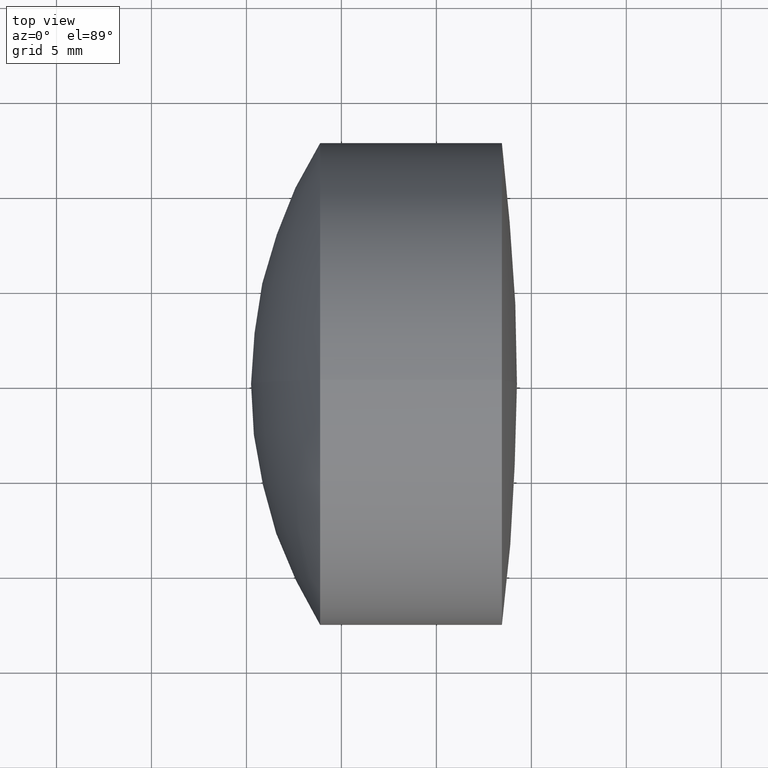
[diagram: clean part render]
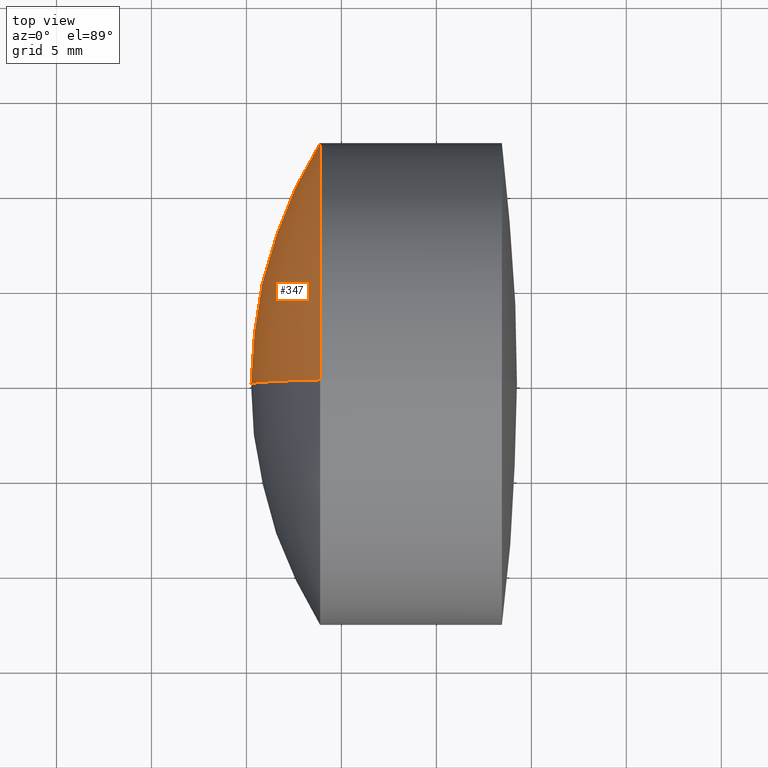
[diagram: same view with one face highlighted and labeled with its STEP entity id]
A machine part, top view. The second image highlights one B-rep face of the part: STEP entity #347.
In plain terms, the highlighted spherical surface has radius 24 mm.
Its self-contained STEP definition (entity closure, byte-faithful):
#9 = DIRECTION ( 'NONE',  ( 0.0000000000000000000, 0.0000000000000000000, 1.000000000000000000 ) ) ;
#12 = CIRCLE ( 'NONE', #179, 23.99999999999999600 ) ;
#23 = AXIS2_PLACEMENT_3D ( 'NONE', #213, #286, #9 ) ;
#29 = CARTESIAN_POINT ( 'NONE',  ( 215.2421632578001700, 0.0000000000000000000, 1.252735716401787200E-015 ) ) ;
#33 = CIRCLE ( 'NONE', #93, 23.99999999999999600 ) ;
#34 = EDGE_CURVE ( 'NONE', #128, #190, #332, .T. ) ;
#51 = DIRECTION ( 'NONE',  ( -1.000000000000000000, -0.0000000000000000000, -0.0000000000000000000 ) ) ;
#78 = CARTESIAN_POINT ( 'NONE',  ( 218.8777334842955900, 0.0000000000000000000, 12.69999999999999900 ) ) ;
#80 = DIRECTION ( 'NONE',  ( 0.0000000000000000000, 0.0000000000000000000, -1.000000000000000000 ) ) ;
#87 = ORIENTED_EDGE ( 'NONE', *, *, #34, .T. ) ;
#91 = EDGE_CURVE ( 'NONE', #128, #229, #33, .T. ) ;
#93 = AXIS2_PLACEMENT_3D ( 'NONE', #105, #268, #80 ) ;
#105 = CARTESIAN_POINT ( 'NONE',  ( 239.2421632578001700, 0.0000000000000000000, -2.168404425750365600E-016 ) ) ;
#110 = EDGE_LOOP ( 'NONE', ( #87, #230, #245 ) ) ;
#128 = VERTEX_POINT ( 'NONE', #78 ) ;
#137 = EDGE_CURVE ( 'NONE', #190, #229, #12, .T. ) ;
#151 = CARTESIAN_POINT ( 'NONE',  ( 218.8777334842955900, 1.555301434917138400E-015, -12.69999999999999900 ) ) ;
#152 = DIRECTION ( 'NONE',  ( -0.0000000000000000000, 1.000000000000000000, 1.224646799147353200E-016 ) ) ;
#179 = AXIS2_PLACEMENT_3D ( 'NONE', #335, #152, #312 ) ;
#190 = VERTEX_POINT ( 'NONE', #151 ) ;
#213 = CARTESIAN_POINT ( 'NONE',  ( 239.2421632578001700, 0.0000000000000000000, -2.168404425750365600E-016 ) ) ;
#219 = DIRECTION ( 'NONE',  ( 0.0000000000000000000, 0.0000000000000000000, 1.000000000000000000 ) ) ;
#229 = VERTEX_POINT ( 'NONE', #29 ) ;
#230 = ORIENTED_EDGE ( 'NONE', *, *, #137, .T. ) ;
#243 = CARTESIAN_POINT ( 'NONE',  ( 218.8777334842955900, 0.0000000000000000000, 0.0000000000000000000 ) ) ;
#245 = ORIENTED_EDGE ( 'NONE', *, *, #91, .F. ) ;
#268 = DIRECTION ( 'NONE',  ( 0.0000000000000000000, -1.000000000000000000, 0.0000000000000000000 ) ) ;
#286 = DIRECTION ( 'NONE',  ( 0.0000000000000000000, 1.000000000000000000, 0.0000000000000000000 ) ) ;
#289 = AXIS2_PLACEMENT_3D ( 'NONE', #243, #51, #219 ) ;
#293 = SPHERICAL_SURFACE ( 'NONE', #23, 23.99999999999999600 ) ;
#312 = DIRECTION ( 'NONE',  ( 0.0000000000000000000, -1.224646799147353200E-016, 1.000000000000000000 ) ) ;
#332 = CIRCLE ( 'NONE', #289, 12.69999999999999900 ) ;
#335 = CARTESIAN_POINT ( 'NONE',  ( 239.2421632578001700, 0.0000000000000000000, -2.168404425750365600E-016 ) ) ;
#338 = FACE_OUTER_BOUND ( 'NONE', #110, .T. ) ;
#347 = ADVANCED_FACE ( 'NONE', ( #338 ), #293, .T. ) ;